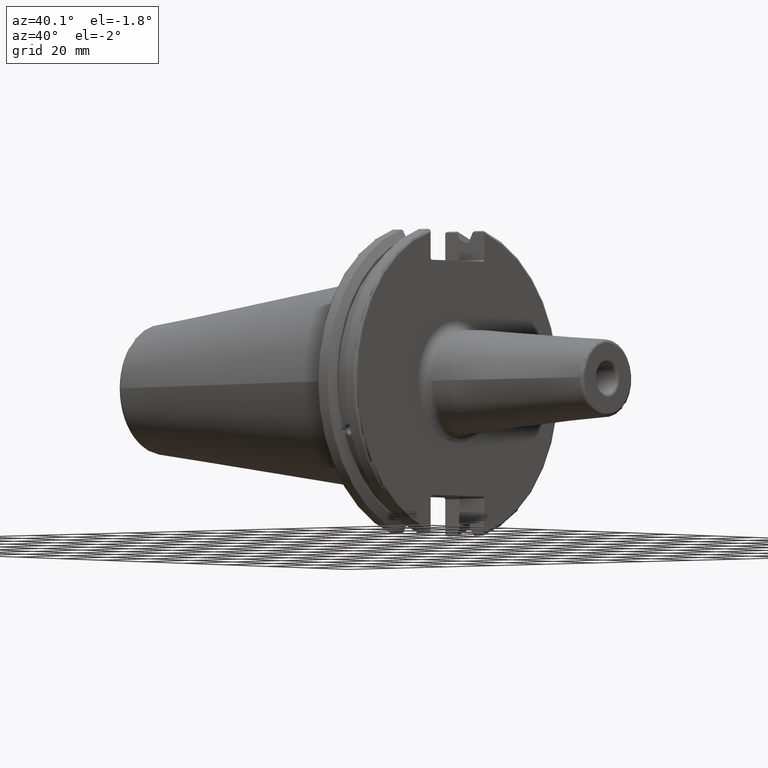
[diagram: clean part render]
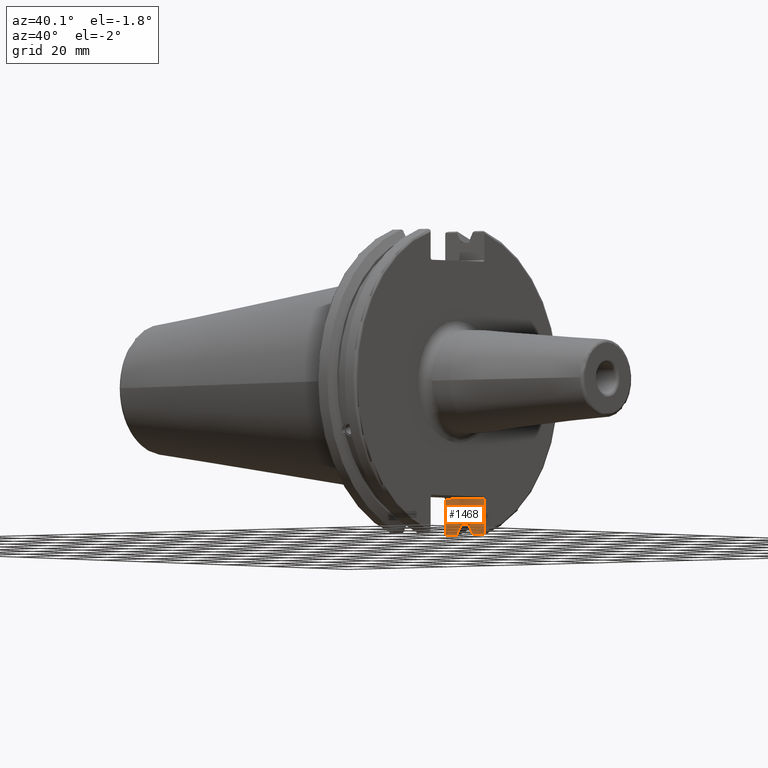
[diagram: same view with one face highlighted and labeled with its STEP entity id]
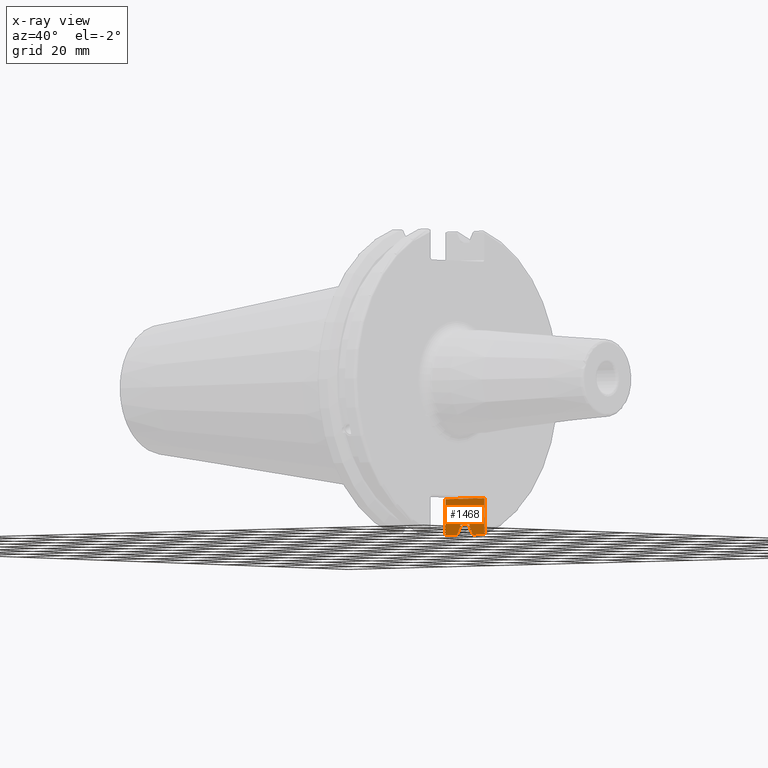
[diagram: x-ray of the same camera — body ghosted, the highlighted face saturated]
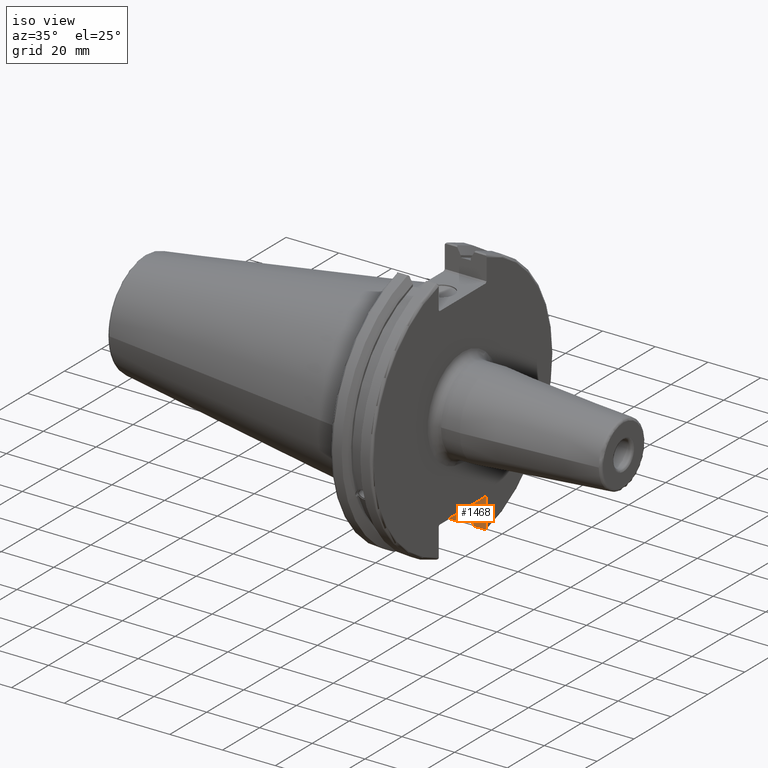
[diagram: same view with one face highlighted and labeled with its STEP entity id]
A machine part, auxiliary view. The second image highlights one B-rep face of the part: STEP entity #1468.
The next image is the same camera in x-ray: the body ghosted, the highlighted face saturated — about 0% of this face is hidden behind the body in this view.
A second angle (iso view) of the same face is appended — the face is thin or edge-on in the first view.
In plain terms, the highlighted planar face has unit normal (0, 1, 0).
Its self-contained STEP definition (entity closure, byte-faithful):
#19=(
BOUNDED_CURVE()
B_SPLINE_CURVE(2,(#2669,#2670,#2671),.UNSPECIFIED.,.F.,.F.)
B_SPLINE_CURVE_WITH_KNOTS((3,3),(0.,0.275823910674652),.UNSPECIFIED.)
CURVE()
GEOMETRIC_REPRESENTATION_ITEM()
RATIONAL_B_SPLINE_CURVE((1.,1.00038235573731,1.00012873636533))
REPRESENTATION_ITEM('')
);
#24=(
BOUNDED_CURVE()
B_SPLINE_CURVE(2,(#2804,#2805,#2806),.UNSPECIFIED.,.F.,.F.)
B_SPLINE_CURVE_WITH_KNOTS((3,3),(0.0558332664532001,0.331657177124504),
 .UNSPECIFIED.)
CURVE()
GEOMETRIC_REPRESENTATION_ITEM()
RATIONAL_B_SPLINE_CURVE((1.00012873636632,1.00038235574022,1.))
REPRESENTATION_ITEM('')
);
#56=B_SPLINE_CURVE_WITH_KNOTS('',3,(#2761,#2762,#2763,#2764,#2765,#2766),
 .UNSPECIFIED.,.F.,.F.,(4,2,4),(0.452859340315922,0.491741138916218,0.506051994111223),
 .UNSPECIFIED.);
#59=B_SPLINE_CURVE_WITH_KNOTS('',3,(#2797,#2798,#2799,#2800,#2801,#2802),
 .UNSPECIFIED.,.F.,.F.,(4,2,4),(0.0976892167532858,0.112000071948292,0.150881870548587),
 .UNSPECIFIED.);
#95=LINE('',#2164,#185);
#120=LINE('',#2690,#210);
#121=LINE('',#2694,#211);
#122=LINE('',#2698,#212);
#131=LINE('',#2740,#221);
#137=LINE('',#2788,#227);
#139=LINE('',#2795,#229);
#140=LINE('',#2803,#230);
#185=VECTOR('',#1754,10.);
#210=VECTOR('',#1877,10.);
#211=VECTOR('',#1882,10.);
#212=VECTOR('',#1887,10.);
#221=VECTOR('',#1928,10.);
#227=VECTOR('',#1944,10.);
#229=VECTOR('',#1948,10.);
#230=VECTOR('',#1949,10.);
#323=PLANE('',#1630);
#389=FACE_OUTER_BOUND('',#490,.T.);
#490=EDGE_LOOP('',(#1207,#1208,#1209,#1210,#1211,#1212,#1213,#1214,#1215,
#1216,#1217,#1218));
#620=VERTEX_POINT('',#2142);
#630=VERTEX_POINT('',#2162);
#686=VERTEX_POINT('',#2666);
#687=VERTEX_POINT('',#2668);
#692=VERTEX_POINT('',#2688);
#693=VERTEX_POINT('',#2692);
#694=VERTEX_POINT('',#2696);
#710=VERTEX_POINT('',#2737);
#711=VERTEX_POINT('',#2739);
#717=VERTEX_POINT('',#2760);
#720=VERTEX_POINT('',#2787);
#722=VERTEX_POINT('',#2796);
#784=EDGE_CURVE('',#630,#620,#95,.T.);
#857=EDGE_CURVE('',#686,#687,#19,.T.);
#864=EDGE_CURVE('',#692,#686,#120,.T.);
#866=EDGE_CURVE('',#693,#692,#121,.T.);
#868=EDGE_CURVE('',#694,#693,#122,.T.);
#887=EDGE_CURVE('',#710,#711,#131,.T.);
#895=EDGE_CURVE('',#620,#717,#56,.T.);
#899=EDGE_CURVE('',#717,#720,#137,.T.);
#902=EDGE_CURVE('',#711,#630,#139,.T.);
#903=EDGE_CURVE('',#722,#710,#59,.T.);
#904=EDGE_CURVE('',#687,#722,#140,.T.);
#905=EDGE_CURVE('',#720,#694,#24,.T.);
#1207=ORIENTED_EDGE('',*,*,#895,.F.);
#1208=ORIENTED_EDGE('',*,*,#784,.F.);
#1209=ORIENTED_EDGE('',*,*,#902,.F.);
#1210=ORIENTED_EDGE('',*,*,#887,.F.);
#1211=ORIENTED_EDGE('',*,*,#903,.F.);
#1212=ORIENTED_EDGE('',*,*,#904,.F.);
#1213=ORIENTED_EDGE('',*,*,#857,.F.);
#1214=ORIENTED_EDGE('',*,*,#864,.F.);
#1215=ORIENTED_EDGE('',*,*,#866,.F.);
#1216=ORIENTED_EDGE('',*,*,#868,.F.);
#1217=ORIENTED_EDGE('',*,*,#905,.F.);
#1218=ORIENTED_EDGE('',*,*,#899,.F.);
#1468=ADVANCED_FACE('',(#389),#323,.F.);
#1630=AXIS2_PLACEMENT_3D('',#2794,#1946,#1947);
#1754=DIRECTION('',(0.,0.,-1.));
#1877=DIRECTION('',(0.,0.,-1.));
#1882=DIRECTION('',(-1.,0.,0.));
#1887=DIRECTION('',(0.,0.,1.));
#1928=DIRECTION('',(0.,0.,1.));
#1944=DIRECTION('',(-1.,2.63163976207444E-16,0.));
#1946=DIRECTION('center_axis',(2.63163976207444E-16,1.,0.));
#1947=DIRECTION('ref_axis',(1.,-2.63163976207444E-16,0.));
#1948=DIRECTION('',(1.,-2.63163976207444E-16,0.));
#1949=DIRECTION('',(-1.,2.63163976207444E-16,0.));
#2142=CARTESIAN_POINT('',(19.05,12.95,-46.4407434937254));
#2162=CARTESIAN_POINT('',(19.05,12.95,-35.806));
#2164=CARTESIAN_POINT('',(19.05,12.95,-17.653));
#2666=CARTESIAN_POINT('',(9.2191,12.95,-44.5791147973604));
#2668=CARTESIAN_POINT('',(7.88638960562424,12.95,-46.9780755322918));
#2669=CARTESIAN_POINT('Ctrl Pts',(9.2191,12.95,-44.5791147973604));
#2670=CARTESIAN_POINT('Ctrl Pts',(8.57020449055827,12.95,-45.7494966802153));
#2671=CARTESIAN_POINT('Ctrl Pts',(7.88638960562424,12.95,-46.9780755322918));
#2688=CARTESIAN_POINT('',(9.2191,12.95,-43.7678716897452));
#2690=CARTESIAN_POINT('',(9.2191,12.95,-17.653));
#2692=CARTESIAN_POINT('',(13.0491,12.95,-43.7678716897452));
#2694=CARTESIAN_POINT('',(11.1341,12.95,-43.7678716897452));
#2696=CARTESIAN_POINT('',(13.0491,12.95,-44.5791147973605));
#2698=CARTESIAN_POINT('',(13.0491,12.95,-17.653));
#2737=CARTESIAN_POINT('',(3.175,12.95,-46.4407434937254));
#2739=CARTESIAN_POINT('',(3.175,12.95,-35.806));
#2740=CARTESIAN_POINT('',(3.175,12.95,-17.653));
#2760=CARTESIAN_POINT('',(18.9055020570566,12.95,-46.9780755322918));
#2761=CARTESIAN_POINT('Ctrl Pts',(19.05,12.95,-46.4407434937254));
#2762=CARTESIAN_POINT('Ctrl Pts',(19.05,12.95,-46.5703494890597));
#2763=CARTESIAN_POINT('Ctrl Pts',(19.0204646992875,12.95,-46.7230464903732));
#2764=CARTESIAN_POINT('Ctrl Pts',(18.9538432708766,12.95,-46.887363294568));
#2765=CARTESIAN_POINT('Ctrl Pts',(18.9315844351616,12.95,-46.9333752207329));
#2766=CARTESIAN_POINT('Ctrl Pts',(18.9055020570566,12.95,-46.9780755322918));
#2787=CARTESIAN_POINT('',(14.3818103943757,12.95,-46.9780755322918));
#2788=CARTESIAN_POINT('',(16.8551045170244,12.95,-46.9780755322918));
#2794=CARTESIAN_POINT('Origin',(3.17499999999999,12.95,-35.306));
#2795=CARTESIAN_POINT('',(10.63125,12.95,-35.806));
#2796=CARTESIAN_POINT('',(3.31949794294344,12.95,-46.9780755322918));
#2797=CARTESIAN_POINT('Ctrl Pts',(3.31949794294344,12.95,-46.9780755322918));
#2798=CARTESIAN_POINT('Ctrl Pts',(3.29341556483839,12.95,-46.9333752207329));
#2799=CARTESIAN_POINT('Ctrl Pts',(3.27115672912336,12.95,-46.887363294568));
#2800=CARTESIAN_POINT('Ctrl Pts',(3.20453530071253,12.95,-46.7230464903732));
#2801=CARTESIAN_POINT('Ctrl Pts',(3.175,12.95,-46.5703494890597));
#2802=CARTESIAN_POINT('Ctrl Pts',(3.175,12.95,-46.4407434937254));
#2803=CARTESIAN_POINT('',(5.39149548297563,12.95,-46.9780755322918));
#2804=CARTESIAN_POINT('Ctrl Pts',(14.3818103943757,12.95,-46.9780755322918));
#2805=CARTESIAN_POINT('Ctrl Pts',(13.6979955094851,12.95,-45.7494966802933));
#2806=CARTESIAN_POINT('Ctrl Pts',(13.0491,12.95,-44.5791147973604));